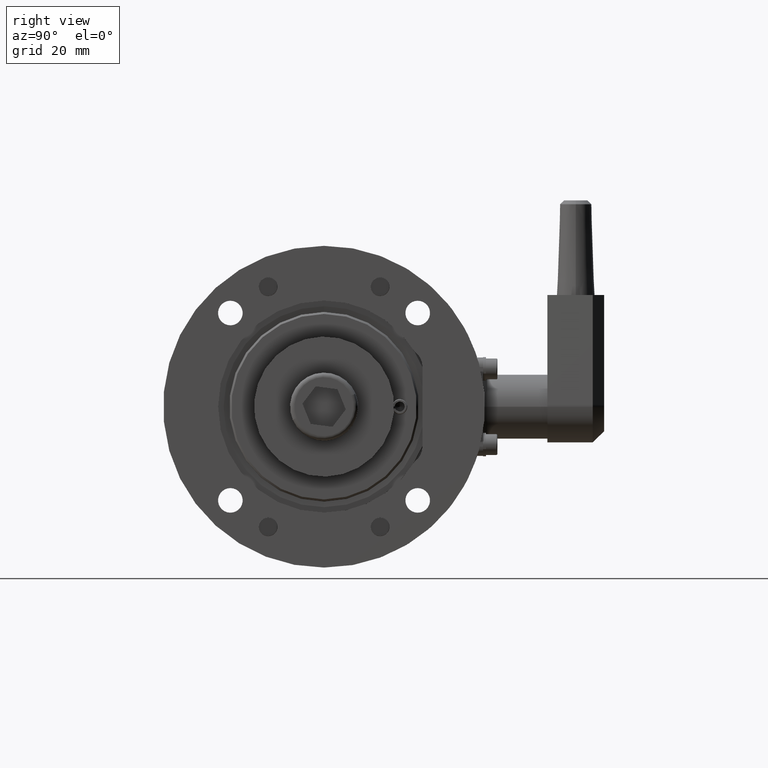
[diagram: clean part render]
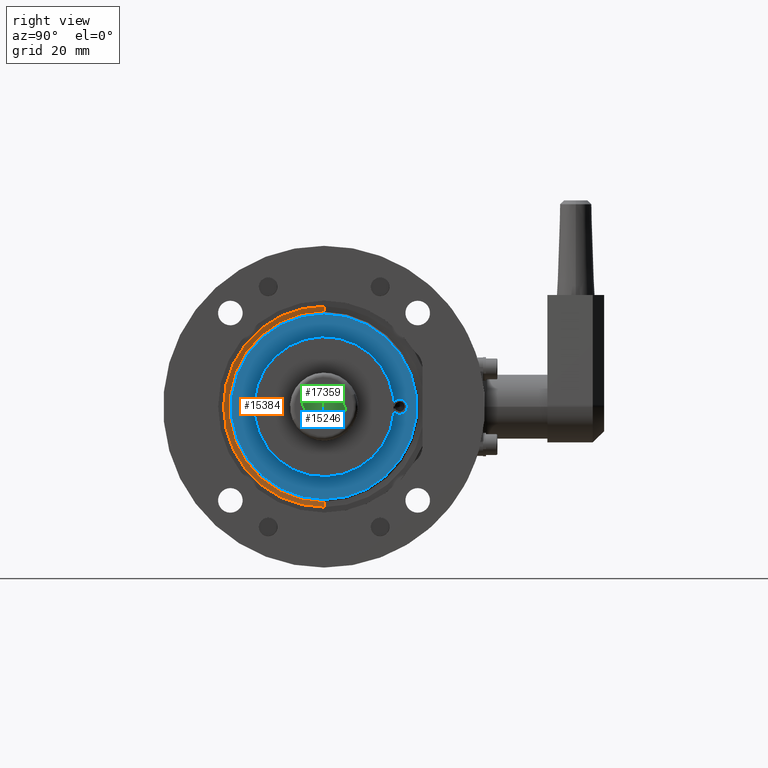
[diagram: same view with three faces highlighted in distinct colors, each labeled with its STEP entity id]
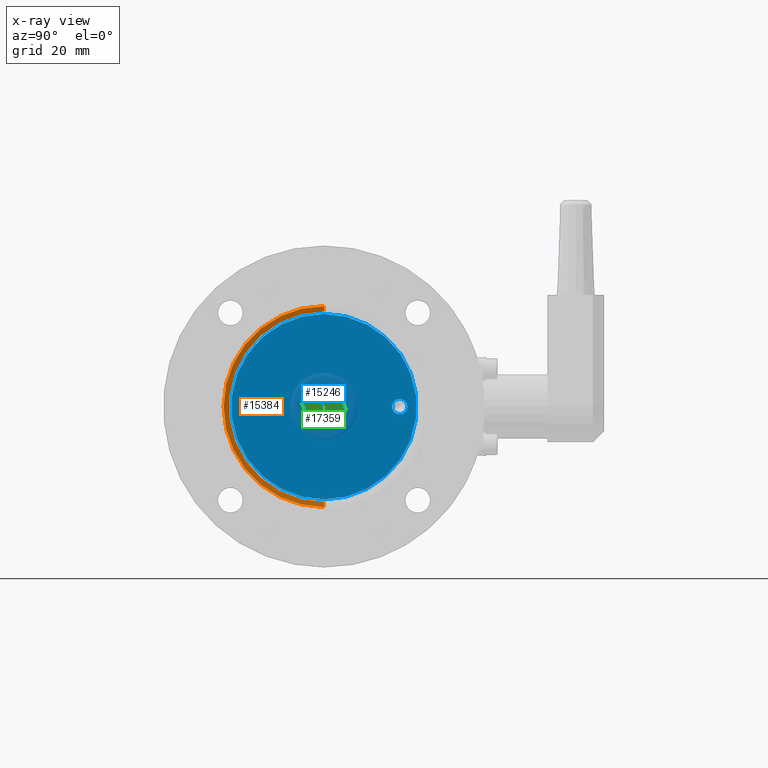
[diagram: x-ray of the same camera — body ghosted, the three highlighted faces saturated]
A machine part, right view with three faces highlighted in distinct colors.
The next image is the same camera in x-ray (body ghosted, the three faces saturated) — at least one of them is partly hidden behind the body in this view.
Their STEP definitions:

[orange] entity #15384 — the highlighted conical surface has half-angle 82 deg.
#41 = VECTOR ( 'NONE', #3454, 1000.000000000000000 ) ;
#537 = DIRECTION ( 'NONE',  ( -1.000000000000000000, -0.000000000000000000, 0.000000000000000000 ) ) ;
#1166 = VERTEX_POINT ( 'NONE', #2497 ) ;
#1214 = EDGE_CURVE ( 'NONE', #1166, #7253, #15887, .T. ) ;
#2201 = VERTEX_POINT ( 'NONE', #17693 ) ;
#2338 = DIRECTION ( 'NONE',  ( 0.1391731009600579994, 1.212728620682196447E-16, 0.9902680687415713612 ) ) ;
#2351 = ORIENTED_EDGE ( 'NONE', *, *, #1214, .T. ) ;
#2497 = CARTESIAN_POINT ( 'NONE',  ( 58.80194638625170001, -3.469446951953614189E-15, -25.12783462019201863 ) ) ;
#3454 = DIRECTION ( 'NONE',  ( 0.1391731009600579994, 0.000000000000000000, -0.9902680687415713612 ) ) ;
#4447 = EDGE_LOOP ( 'NONE', ( #2351, #15466, #14315, #18770 ) ) ;
#4907 = CIRCLE ( 'NONE', #19656, 26.53705930686551895 ) ;
#5262 = CARTESIAN_POINT ( 'NONE',  ( 59.00000000000000000, -3.469446951953614189E-15, 0.000000000000000000 ) ) ;
#5698 = CARTESIAN_POINT ( 'NONE',  ( 58.80194638625170001, -3.469446951953614189E-15, 0.000000000000000000 ) ) ;
#5794 = CARTESIAN_POINT ( 'NONE',  ( 58.80194638625170001, -3.058846031506872951E-16, 25.12783462019201863 ) ) ;
#7253 = VERTEX_POINT ( 'NONE', #5794 ) ;
#7654 = VECTOR ( 'NONE', #2338, 1000.000000000000000 ) ;
#8399 = DIRECTION ( 'NONE',  ( 1.000000000000000000, 0.000000000000000000, -0.000000000000000000 ) ) ;
#8708 = CARTESIAN_POINT ( 'NONE',  ( 59.00000000000000000, -3.469446951953614189E-15, -26.53705930686551895 ) ) ;
#8886 = DIRECTION ( 'NONE',  ( -1.000000000000000000, -0.000000000000000000, 0.000000000000000000 ) ) ;
#9779 = CARTESIAN_POINT ( 'NONE',  ( 58.80194638625170001, -3.469446951953614189E-15, -25.12783462019201863 ) ) ;
#9803 = AXIS2_PLACEMENT_3D ( 'NONE', #11693, #8399, #13067 ) ;
#10453 = EDGE_CURVE ( 'NONE', #7253, #2201, #13367, .T. ) ;
#11693 = CARTESIAN_POINT ( 'NONE',  ( 58.80194638625170001, -3.469446951953614189E-15, 0.000000000000000000 ) ) ;
#12656 = CONICAL_SURFACE ( 'NONE', #9803, 25.12783462019201863, 1.431169986635357771 ) ;
#13067 = DIRECTION ( 'NONE',  ( 0.000000000000000000, 0.000000000000000000, -1.000000000000000000 ) ) ;
#13266 = EDGE_CURVE ( 'NONE', #1166, #18342, #17401, .T. ) ;
#13367 = LINE ( 'NONE', #13467, #7654 ) ;
#13467 = CARTESIAN_POINT ( 'NONE',  ( 58.80194638625170001, -3.921747282413940178E-16, 25.12783462019201863 ) ) ;
#13878 = FACE_OUTER_BOUND ( 'NONE', #4447, .T. ) ;
#14315 = ORIENTED_EDGE ( 'NONE', *, *, #17389, .F. ) ;
#15384 = ADVANCED_FACE ( 'NONE', ( #13878 ), #12656, .F. ) ;
#15466 = ORIENTED_EDGE ( 'NONE', *, *, #10453, .T. ) ;
#15887 = CIRCLE ( 'NONE', #17384, 25.12783462019201863 ) ;
#16414 = DIRECTION ( 'NONE',  ( 0.000000000000000000, 0.000000000000000000, 1.000000000000000000 ) ) ;
#16686 = DIRECTION ( 'NONE',  ( 0.000000000000000000, 0.000000000000000000, 1.000000000000000000 ) ) ;
#17384 = AXIS2_PLACEMENT_3D ( 'NONE', #5698, #8886, #16686 ) ;
#17389 = EDGE_CURVE ( 'NONE', #18342, #2201, #4907, .T. ) ;
#17401 = LINE ( 'NONE', #9779, #41 ) ;
#17693 = CARTESIAN_POINT ( 'NONE',  ( 59.00000000000000000, -2.195944780599809176E-16, 26.53705930686551895 ) ) ;
#18342 = VERTEX_POINT ( 'NONE', #8708 ) ;
#18770 = ORIENTED_EDGE ( 'NONE', *, *, #13266, .F. ) ;
#19656 = AXIS2_PLACEMENT_3D ( 'NONE', #5262, #537, #16414 ) ;

[blue] entity #15246 — the highlighted planar face has unit normal (-1, 0, 0).
#229 = CARTESIAN_POINT ( 'NONE',  ( 62.00000000000000000, 0.000000000000000000, 0.000000000000000000 ) ) ;
#266 = DIRECTION ( 'NONE',  ( 1.000000000000000000, -0.000000000000000000, -0.000000000000000000 ) ) ;
#560 = PLANE ( 'NONE',  #10502 ) ;
#1327 = CARTESIAN_POINT ( 'NONE',  ( 62.00000000000000000, 0.000000000000000000, 0.000000000000000000 ) ) ;
#1393 = DIRECTION ( 'NONE',  ( 1.000000000000000000, 0.000000000000000000, 0.000000000000000000 ) ) ;
#1411 = ORIENTED_EDGE ( 'NONE', *, *, #3777, .F. ) ;
#2479 = DIRECTION ( 'NONE',  ( 0.000000000000000000, 0.000000000000000000, 1.000000000000000000 ) ) ;
#2642 = CARTESIAN_POINT ( 'NONE',  ( 62.00000000000000000, 0.000000000000000000, 0.000000000000000000 ) ) ;
#2793 = CIRCLE ( 'NONE', #6601, 24.49999999999997158 ) ;
#3136 = VERTEX_POINT ( 'NONE', #7562 ) ;
#3265 = DIRECTION ( 'NONE',  ( 0.000000000000000000, 0.000000000000000000, -1.000000000000000000 ) ) ;
#3777 = EDGE_CURVE ( 'NONE', #3136, #6208, #7155, .T. ) ;
#4280 = EDGE_CURVE ( 'NONE', #7900, #12612, #4878, .T. ) ;
#4308 = DIRECTION ( 'NONE',  ( 0.000000000000000000, 0.000000000000000000, -1.000000000000000000 ) ) ;
#4790 = CIRCLE ( 'NONE', #8731, 1.999999999999998224 ) ;
#4878 = CIRCLE ( 'NONE', #14944, 1.999999999999998224 ) ;
#5130 = DIRECTION ( 'NONE',  ( 0.000000000000000000, 0.000000000000000000, 1.000000000000000000 ) ) ;
#5208 = FACE_BOUND ( 'NONE', #15584, .T. ) ;
#5649 = EDGE_CURVE ( 'NONE', #14602, #16248, #2793, .T. ) ;
#5701 = CARTESIAN_POINT ( 'NONE',  ( 62.00000000000000000, 19.99999999999999289, -1.999999999999998224 ) ) ;
#6208 = VERTEX_POINT ( 'NONE', #10702 ) ;
#6313 = EDGE_CURVE ( 'NONE', #12612, #7900, #4790, .T. ) ;
#6597 = EDGE_CURVE ( 'NONE', #16248, #14602, #18613, .T. ) ;
#6601 = AXIS2_PLACEMENT_3D ( 'NONE', #1327, #1393, #5130 ) ;
#6971 = CARTESIAN_POINT ( 'NONE',  ( 62.00000000000000000, 0.000000000000000000, 0.000000000000000000 ) ) ;
#7139 = EDGE_LOOP ( 'NONE', ( #11145, #1411 ) ) ;
#7148 = CARTESIAN_POINT ( 'NONE',  ( 62.00000000000000000, 0.000000000000000000, 0.000000000000000000 ) ) ;
#7155 = CIRCLE ( 'NONE', #17945, 5.099999999999998757 ) ;
#7562 = CARTESIAN_POINT ( 'NONE',  ( 62.00000000000000000, 6.245698675651499853E-16, 5.099999999999998757 ) ) ;
#7900 = VERTEX_POINT ( 'NONE', #5701 ) ;
#8533 = DIRECTION ( 'NONE',  ( -1.000000000000000000, 0.000000000000000000, -0.000000000000000000 ) ) ;
#8731 = AXIS2_PLACEMENT_3D ( 'NONE', #14542, #266, #15664 ) ;
#9031 = DIRECTION ( 'NONE',  ( 0.000000000000000000, 0.000000000000000000, -1.000000000000000000 ) ) ;
#9599 = DIRECTION ( 'NONE',  ( 1.000000000000000000, -0.000000000000000000, -0.000000000000000000 ) ) ;
#9847 = ORIENTED_EDGE ( 'NONE', *, *, #4280, .F. ) ;
#10502 = AXIS2_PLACEMENT_3D ( 'NONE', #6971, #8533, #19614 ) ;
#10702 = CARTESIAN_POINT ( 'NONE',  ( 62.00000000000000000, 0.000000000000000000, -5.099999999999998757 ) ) ;
#11145 = ORIENTED_EDGE ( 'NONE', *, *, #18367, .F. ) ;
#12612 = VERTEX_POINT ( 'NONE', #16033 ) ;
#13257 = EDGE_LOOP ( 'NONE', ( #17551, #16192 ) ) ;
#13747 = DIRECTION ( 'NONE',  ( 1.000000000000000000, -0.000000000000000000, -0.000000000000000000 ) ) ;
#13763 = CARTESIAN_POINT ( 'NONE',  ( 62.00000000000000000, 0.000000000000000000, 24.49999999999997158 ) ) ;
#13795 = CARTESIAN_POINT ( 'NONE',  ( 62.00000000000000000, 19.99999999999999289, 0.000000000000000000 ) ) ;
#14542 = CARTESIAN_POINT ( 'NONE',  ( 62.00000000000000000, 19.99999999999999289, 0.000000000000000000 ) ) ;
#14602 = VERTEX_POINT ( 'NONE', #16038 ) ;
#14944 = AXIS2_PLACEMENT_3D ( 'NONE', #13795, #16845, #9031 ) ;
#15246 = ADVANCED_FACE ( 'NONE', ( #20324, #5208, #19573 ), #560, .F. ) ;
#15584 = EDGE_LOOP ( 'NONE', ( #9847, #19744 ) ) ;
#15664 = DIRECTION ( 'NONE',  ( 0.000000000000000000, 0.000000000000000000, -1.000000000000000000 ) ) ;
#16033 = CARTESIAN_POINT ( 'NONE',  ( 62.00000000000000000, 19.99999999999999289, 1.999999999999998224 ) ) ;
#16038 = CARTESIAN_POINT ( 'NONE',  ( 62.00000000000000000, 3.031000827889697678E-15, -24.49999999999997158 ) ) ;
#16192 = ORIENTED_EDGE ( 'NONE', *, *, #5649, .T. ) ;
#16248 = VERTEX_POINT ( 'NONE', #13763 ) ;
#16845 = DIRECTION ( 'NONE',  ( 1.000000000000000000, -0.000000000000000000, -0.000000000000000000 ) ) ;
#16992 = CIRCLE ( 'NONE', #17787, 5.099999999999998757 ) ;
#17551 = ORIENTED_EDGE ( 'NONE', *, *, #6597, .T. ) ;
#17787 = AXIS2_PLACEMENT_3D ( 'NONE', #2642, #13747, #4308 ) ;
#17945 = AXIS2_PLACEMENT_3D ( 'NONE', #229, #9599, #3265 ) ;
#18171 = DIRECTION ( 'NONE',  ( 1.000000000000000000, 0.000000000000000000, 0.000000000000000000 ) ) ;
#18367 = EDGE_CURVE ( 'NONE', #6208, #3136, #16992, .T. ) ;
#18613 = CIRCLE ( 'NONE', #19178, 24.49999999999997158 ) ;
#19178 = AXIS2_PLACEMENT_3D ( 'NONE', #7148, #18171, #2479 ) ;
#19573 = FACE_BOUND ( 'NONE', #7139, .T. ) ;
#19614 = DIRECTION ( 'NONE',  ( -0.000000000000000000, 0.000000000000000000, 1.000000000000000000 ) ) ;
#19744 = ORIENTED_EDGE ( 'NONE', *, *, #6313, .F. ) ;
#20324 = FACE_OUTER_BOUND ( 'NONE', #13257, .T. ) ;

[green] entity #17359 — the highlighted planar face has unit normal (-1, 0, 0).
#687 = ORIENTED_EDGE ( 'NONE', *, *, #15570, .T. ) ;
#780 = ORIENTED_EDGE ( 'NONE', *, *, #3804, .T. ) ;
#1790 = DIRECTION ( 'NONE',  ( 0.000000000000000000, 0.5000000000000007772, 0.8660254037844381525 ) ) ;
#2053 = PLANE ( 'NONE',  #5189 ) ;
#2330 = EDGE_CURVE ( 'NONE', #19591, #20205, #3185, .T. ) ;
#2445 = VERTEX_POINT ( 'NONE', #15221 ) ;
#2885 = VECTOR ( 'NONE', #3325, 1000.000000000000000 ) ;
#3119 = DIRECTION ( 'NONE',  ( 0.000000000000000000, -0.5000000000000008882, -0.8660254037844380415 ) ) ;
#3185 = LINE ( 'NONE', #8855, #10175 ) ;
#3325 = DIRECTION ( 'NONE',  ( 0.000000000000000000, -0.4999999999999989453, 0.8660254037844392627 ) ) ;
#3804 = EDGE_CURVE ( 'NONE', #20205, #6600, #5910, .T. ) ;
#3838 = EDGE_CURVE ( 'NONE', #2445, #19591, #15318, .T. ) ;
#3853 = CARTESIAN_POINT ( 'NONE',  ( 6.000000000000000000, 2.893968224312993609, -5.012500000000005507 ) ) ;
#4240 = ORIENTED_EDGE ( 'NONE', *, *, #15187, .T. ) ;
#5177 = VERTEX_POINT ( 'NONE', #11502 ) ;
#5178 = LINE ( 'NONE', #10706, #12911 ) ;
#5188 = CARTESIAN_POINT ( 'NONE',  ( 6.000000000000000000, -2.893968224312996274, 5.012500000000003730 ) ) ;
#5189 = AXIS2_PLACEMENT_3D ( 'NONE', #5188, #10118, #14825 ) ;
#5411 = FACE_OUTER_BOUND ( 'NONE', #17485, .T. ) ;
#5538 = CARTESIAN_POINT ( 'NONE',  ( 6.000000000000000000, -5.787936448625999653, 6.938893903907228378E-15 ) ) ;
#5910 = LINE ( 'NONE', #17535, #2885 ) ;
#6336 = ORIENTED_EDGE ( 'NONE', *, *, #3838, .T. ) ;
#6547 = CARTESIAN_POINT ( 'NONE',  ( 6.000000000000000000, -5.787936448625999653, 6.938893903907228378E-15 ) ) ;
#6554 = CARTESIAN_POINT ( 'NONE',  ( 6.000000000000000000, 5.787936448625997876, -9.107298248878237246E-15 ) ) ;
#6600 = VERTEX_POINT ( 'NONE', #5538 ) ;
#8294 = CARTESIAN_POINT ( 'NONE',  ( 6.000000000000000000, -2.893968224313006488, -5.012499999999996625 ) ) ;
#8711 = ORIENTED_EDGE ( 'NONE', *, *, #20046, .T. ) ;
#8855 = CARTESIAN_POINT ( 'NONE',  ( 6.000000000000000000, 2.893968224312993609, -5.012500000000005507 ) ) ;
#9275 = LINE ( 'NONE', #11293, #14970 ) ;
#9436 = VECTOR ( 'NONE', #1790, 1000.000000000000227 ) ;
#10118 = DIRECTION ( 'NONE',  ( 1.000000000000000000, -0.000000000000000000, 0.000000000000000000 ) ) ;
#10175 = VECTOR ( 'NONE', #12212, 1000.000000000000000 ) ;
#10706 = CARTESIAN_POINT ( 'NONE',  ( 6.000000000000000000, 2.893968224313005599, 5.012499999999995737 ) ) ;
#11293 = CARTESIAN_POINT ( 'NONE',  ( 6.000000000000000000, -2.893968224312995385, 5.012500000000004619 ) ) ;
#11502 = CARTESIAN_POINT ( 'NONE',  ( 6.000000000000000000, -2.893968224312995385, 5.012500000000004619 ) ) ;
#12212 = DIRECTION ( 'NONE',  ( -0.000000000000000000, -1.000000000000000000, 1.498568178291430369E-15 ) ) ;
#12911 = VECTOR ( 'NONE', #20074, 1000.000000000000114 ) ;
#12934 = VERTEX_POINT ( 'NONE', #19830 ) ;
#14825 = DIRECTION ( 'NONE',  ( 0.000000000000000000, 0.000000000000000000, -1.000000000000000000 ) ) ;
#14970 = VECTOR ( 'NONE', #19078, 1000.000000000000000 ) ;
#15187 = EDGE_CURVE ( 'NONE', #6600, #5177, #15630, .T. ) ;
#15221 = CARTESIAN_POINT ( 'NONE',  ( 6.000000000000000000, 5.787936448625997876, -9.107298248878237246E-15 ) ) ;
#15318 = LINE ( 'NONE', #6554, #18016 ) ;
#15570 = EDGE_CURVE ( 'NONE', #12934, #2445, #5178, .T. ) ;
#15630 = LINE ( 'NONE', #6547, #9436 ) ;
#16056 = ORIENTED_EDGE ( 'NONE', *, *, #2330, .T. ) ;
#17359 = ADVANCED_FACE ( 'NONE', ( #5411 ), #2053, .F. ) ;
#17485 = EDGE_LOOP ( 'NONE', ( #8711, #687, #6336, #16056, #780, #4240 ) ) ;
#17535 = CARTESIAN_POINT ( 'NONE',  ( 6.000000000000000000, -2.893968224313006488, -5.012499999999996625 ) ) ;
#18016 = VECTOR ( 'NONE', #3119, 1000.000000000000227 ) ;
#19078 = DIRECTION ( 'NONE',  ( 0.000000000000000000, 1.000000000000000000, -1.498568178291430171E-15 ) ) ;
#19591 = VERTEX_POINT ( 'NONE', #3853 ) ;
#19830 = CARTESIAN_POINT ( 'NONE',  ( 6.000000000000000000, 2.893968224313005599, 5.012499999999995737 ) ) ;
#20046 = EDGE_CURVE ( 'NONE', #5177, #12934, #9275, .T. ) ;
#20074 = DIRECTION ( 'NONE',  ( 0.000000000000000000, 0.4999999999999987232, -0.8660254037844392627 ) ) ;
#20205 = VERTEX_POINT ( 'NONE', #8294 ) ;